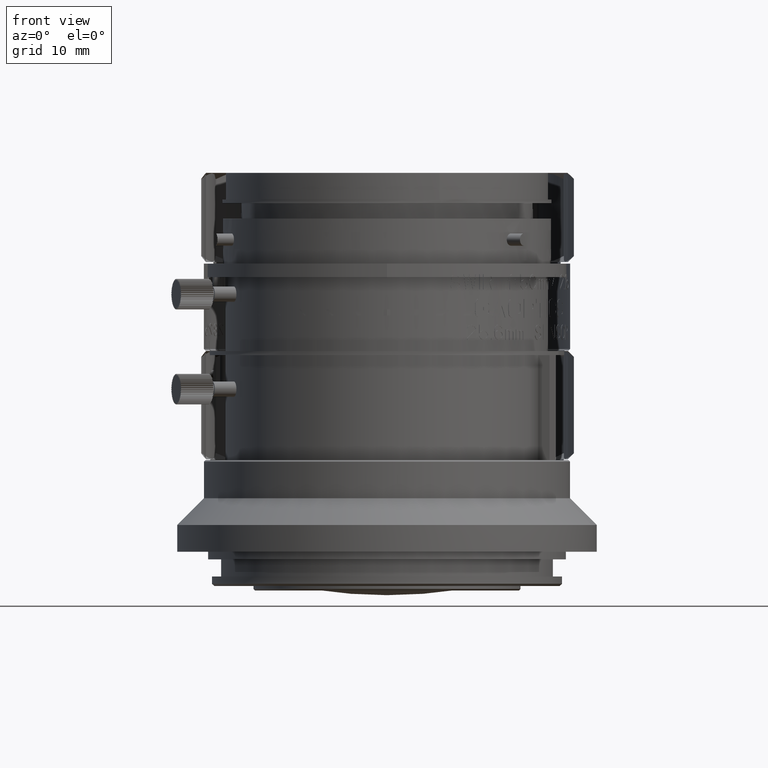
[diagram: clean part render]
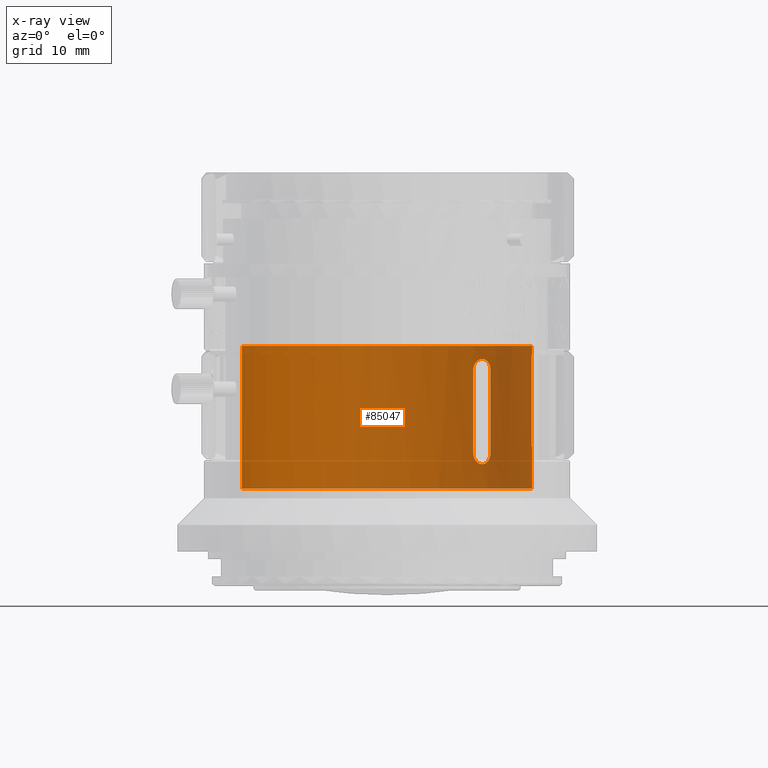
[diagram: x-ray — body ghosted, one internal face saturated and labeled with its STEP entity id]
A machine part, front view, then the same camera in x-ray: the body is ghosted and one INTERNAL B-rep face — a face not visible from any outside direction — is saturated and labeled: STEP entity #85047.
In plain terms, the highlighted cylindrical surface (partial cylindrical patch) has radius 19 mm, axis along (0, 0, -1).
Its self-contained STEP definition (entity closure, byte-faithful):
#395 = DIRECTION ( 'NONE',  ( 0.000000000000000000, 3.878000121706729887E-17, -1.000000000000000000 ) ) ;
#548 = CARTESIAN_POINT ( 'NONE',  ( 42.95321961788130238, 152.1289134582915210, -12.00000000000000000 ) ) ;
#924 = CARTESIAN_POINT ( 'NONE',  ( 35.29415085945115038, 166.0752613124145114, -24.80000044836035045 ) ) ;
#1603 = CARTESIAN_POINT ( 'NONE',  ( 37.02778168141250603, 164.6279587006355598, -12.69037005828635145 ) ) ;
#2789 = ORIENTED_EDGE ( 'NONE', *, *, #49259, .T. ) ;
#3276 = CARTESIAN_POINT ( 'NONE',  ( 14.47813718662098204, 167.2852477254471353, -10.79999999999999893 ) ) ;
#3670 = CARTESIAN_POINT ( 'NONE',  ( 37.42401270552105785, 164.2426996720872694, -13.24221919070071429 ) ) ;
#5167 = B_SPLINE_CURVE_WITH_KNOTS ( 'NONE', 3,
 ( #103851, #15483, #8034, #38376 ),
 .UNSPECIFIED., .F., .F.,
 ( 4, 4 ),
 ( 0.000000000000000000, 1.000000000000000000 ),
 .UNSPECIFIED. ) ;
#5172 = CARTESIAN_POINT ( 'NONE',  ( 41.07782624371362346, 159.2163202649900029, -29.49999999999940314 ) ) ;
#5372 = CARTESIAN_POINT ( 'NONE',  ( 6.922173747267330590, 159.2163202649918503, -10.79999999999999893 ) ) ;
#5419 = ORIENTED_EDGE ( 'NONE', *, *, #77456, .T. ) ;
#6236 = CARTESIAN_POINT ( 'NONE',  ( 7.511199614043024830, 160.3183101528693726, -29.49999999999940670 ) ) ;
#6762 = CARTESIAN_POINT ( 'NONE',  ( 8.892955109440778827, 162.3862533898762877, -29.49999999999941025 ) ) ;
#7394 = CARTESIAN_POINT ( 'NONE',  ( 42.95321961788130238, 152.1289134582915210, -12.00000000000000000 ) ) ;
#7479 = CYLINDRICAL_SURFACE ( 'NONE', #46284, 19.00000000000000000 ) ;
#8034 = CARTESIAN_POINT ( 'NONE',  ( 35.29415085874912705, 166.0752613123007961, -21.20000029852190337 ) ) ;
#8189 = VERTEX_POINT ( 'NONE', #924 ) ;
#11424 = EDGE_CURVE ( 'NONE', #69833, #69420, #36085, .T. ) ;
#11598 = CARTESIAN_POINT ( 'NONE',  ( 38.31434941954619688, 163.3521556050324364, -29.49999999999940314 ) ) ;
#11799 = CARTESIAN_POINT ( 'NONE',  ( 15.58012707449811529, 167.8742735922226643, -10.79999999999999893 ) ) ;
#12327 = CARTESIAN_POINT ( 'NONE',  ( 42.99999999549000052, 150.7964473440000006, -10.80000000000000071 ) ) ;
#12443 = CARTESIAN_POINT ( 'NONE',  ( 37.55822943194178265, 164.1071353259812611, -24.99910155720256810 ) ) ;
#12937 = CARTESIAN_POINT ( 'NONE',  ( 42.99999999549000052, 150.7964473440000006, -20.14999999999970015 ) ) ;
#13175 = CARTESIAN_POINT ( 'NONE',  ( 32.41987291648335656, 167.8742735922219538, -29.49999999999940314 ) ) ;
#14148 = VECTOR ( 'NONE', #86928, 1000.000000000000000 ) ;
#15483 = CARTESIAN_POINT ( 'NONE',  ( 35.29415085871695368, 166.0752613123245567, -17.60000014926090017 ) ) ;
#15805 = CARTESIAN_POINT ( 'NONE',  ( 11.44429173445661441, 165.1107967680553372, -29.49999999999941025 ) ) ;
#15985 = ORIENTED_EDGE ( 'NONE', *, *, #55064, .T. ) ;
#16194 = ORIENTED_EDGE ( 'NONE', *, *, #44936, .T. ) ;
#18625 = CARTESIAN_POINT ( 'NONE',  ( 42.95321961787214349, 152.1289134582965517, -20.00000000000000000 ) ) ;
#19270 = CARTESIAN_POINT ( 'NONE',  ( 5.122475665199156758, 153.2835107789395579, -10.79999999999999893 ) ) ;
#19291 = B_SPLINE_CURVE_WITH_KNOTS ( 'NONE', 3,
 ( #45114, #77616, #94651, #60026, #102086, #5172, #84556, #29125, #11598, #61602, #94115, #44054, #13175, #45627, #101046, #77089, #37639, #102613, #21185, #28083, #70120, #60555, #93072, #20127, #15805, #55735, #6762, #6236, #95167, #78658, #79717, #30683, #96745, #38167 ),
 .UNSPECIFIED., .F., .F.,
 ( 4, 2, 2, 2, 2, 2, 2, 2, 2, 2, 2, 2, 2, 2, 2, 2, 4 ),
 ( 0.000000000000000000, 0.06250000000000000000, 0.1250000000000000000, 0.1875000000000000000, 0.2500000000000000000, 0.3125000000000000000, 0.3750000000000000000, 0.4375000000000000000, 0.5000000000000000000, 0.5625000000000000000, 0.6250000000000000000, 0.6875000000000000000, 0.7500000000000000000, 0.8125000000000000000, 0.8750000000000000000, 0.9375000000000000000, 1.000000000000000000 ),
 .UNSPECIFIED. ) ;
#20127 = CARTESIAN_POINT ( 'NONE',  ( 12.41019394961472777, 165.9034922300500057, -29.49999999999939959 ) ) ;
#20321 = CARTESIAN_POINT ( 'NONE',  ( 38.31434941954494633, 163.3521556050338290, -10.79999999999999893 ) ) ;
#20449 = CARTESIAN_POINT ( 'NONE',  ( 35.53393053574318827, 165.8957279201297581, -25.72005964078381979 ) ) ;
#20862 = CARTESIAN_POINT ( 'NONE',  ( 32.41987291648192837, 167.8742735922226643, -10.79999999999999893 ) ) ;
#21185 = CARTESIAN_POINT ( 'NONE',  ( 21.51293656055162273, 169.6739716742910105, -29.49999999999941025 ) ) ;
#21275 = CARTESIAN_POINT ( 'NONE',  ( 36.16841545107473621, 165.3897144655242357, -12.53812143109752597 ) ) ;
#21392 = CARTESIAN_POINT ( 'NONE',  ( 11.44429173445611703, 165.1107967680548825, -10.79999999999999893 ) ) ;
#21963 = CARTESIAN_POINT ( 'NONE',  ( 35.29415085908024707, 166.0752613120529873, -13.99999999999320011 ) ) ;
#22215 = CARTESIAN_POINT ( 'NONE',  ( 42.95321961788130238, 152.1289134582915210, -12.00000000000000000 ) ) ;
#22925 = CARTESIAN_POINT ( 'NONE',  ( 23.99999999549000052, 150.7964473440000006, -20.14999999999970015 ) ) ;
#24656 = VERTEX_POINT ( 'NONE', #21963 ) ;
#25927 = ORIENTED_EDGE ( 'NONE', *, *, #65514, .T. ) ;
#27242 = CARTESIAN_POINT ( 'NONE',  ( 4.999999995490001403, 152.0399944360459585, -10.80000000000000071 ) ) ;
#28043 = CARTESIAN_POINT ( 'NONE',  ( 42.99999999549000052, 150.7964473440000006, -20.14999999999970015 ) ) ;
#28083 = CARTESIAN_POINT ( 'NONE',  ( 19.07363119381766126, 169.1887636690321415, -29.49999999999940314 ) ) ;
#28289 = CARTESIAN_POINT ( 'NONE',  ( 36.55570825652392841, 165.1107967680549109, -10.80000000000000249 ) ) ;
#28803 = CARTESIAN_POINT ( 'NONE',  ( 12.41019394961415401, 165.9034922300495225, -10.80000000000000071 ) ) ;
#29125 = CARTESIAN_POINT ( 'NONE',  ( 39.10704488154074454, 162.3862533898742413, -29.49999999999940314 ) ) ;
#29448 = CARTESIAN_POINT ( 'NONE',  ( 36.31501441265364605, 165.2664155118920633, -26.29999354851271320 ) ) ;
#29956 = VERTEX_POINT ( 'NONE', #39742 ) ;
#30683 = CARTESIAN_POINT ( 'NONE',  ( 5.122475665199165640, 153.2835107789396147, -29.49999999999941380 ) ) ;
#30735 = CARTESIAN_POINT ( 'NONE',  ( 4.999999995490000515, 150.7964473440000006, -20.14999999999970015 ) ) ;
#31240 = ORIENTED_EDGE ( 'NONE', *, *, #11424, .T. ) ;
#31407 = CARTESIAN_POINT ( 'NONE',  ( 37.55827959877614575, 164.1070842257992410, -21.19999999995989981 ) ) ;
#31568 = B_SPLINE_CURVE_WITH_KNOTS ( 'NONE', 3,
 ( #61393, #92875, #60874, #62447, #20449, #94968, #52879, #36394, #29448, #43860, #76348, #53954, #44903, #93908, #36912, #78447, #12443, #84352 ),
 .UNSPECIFIED., .F., .F.,
 ( 4, 2, 2, 2, 2, 2, 2, 2, 4 ),
 ( 0.000000000000000000, 0.1250000000000000000, 0.2500000000000000000, 0.3750000000000000000, 0.5000000000000000000, 0.6250000000000000000, 0.7500000000000000000, 0.8750000000000000000, 1.000000000000000000 ),
 .UNSPECIFIED. ) ;
#34071 = CARTESIAN_POINT ( 'NONE',  ( 36.75768620885329341, 164.8774716159113609, -12.53808179341858775 ) ) ;
#35611 = B_SPLINE_CURVE_WITH_KNOTS ( 'NONE', 3,
 ( #72511, #77491, #104477, #55484 ),
 .UNSPECIFIED., .F., .F.,
 ( 4, 4 ),
 ( 0.000000000000000000, 1.000000000000000000 ),
 .UNSPECIFIED. ) ;
#35734 = CARTESIAN_POINT ( 'NONE',  ( 7.511199614042821437, 160.3183101528690315, -10.79999999999999893 ) ) ;
#36085 = B_SPLINE_CURVE_WITH_KNOTS ( 'NONE', 3,
 ( #62659, #103146, #95172, #22215 ),
 .UNSPECIFIED., .F., .F.,
 ( 4, 4 ),
 ( 0.000000000000000000, 1.000000000000000000 ),
 .UNSPECIFIED. ) ;
#36268 = CARTESIAN_POINT ( 'NONE',  ( 22.75645290344406391, 169.7964473440000006, -10.80000000000000071 ) ) ;
#36394 = CARTESIAN_POINT ( 'NONE',  ( 36.16846216925600288, 165.3896762667183395, -26.26191827598798767 ) ) ;
#36763 = ORIENTED_EDGE ( 'NONE', *, *, #58964, .T. ) ;
#36912 = CARTESIAN_POINT ( 'NONE',  ( 37.42400026280746062, 164.2427121944982389, -25.55778771071468469 ) ) ;
#37093 = EDGE_CURVE ( 'NONE', #69420, #94394, #53904, .T. ) ;
#37639 = CARTESIAN_POINT ( 'NONE',  ( 25.24354708753726939, 169.7964473439999153, -29.49999999999941025 ) ) ;
#38167 = CARTESIAN_POINT ( 'NONE',  ( 4.999999995490000515, 150.7964473440015070, -29.50000000000000000 ) ) ;
#38376 = CARTESIAN_POINT ( 'NONE',  ( 35.29415085945115038, 166.0752613124145114, -24.80000044836035045 ) ) ;
#38525 = EDGE_CURVE ( 'NONE', #46899, #69833, #51999, .T. ) ;
#38790 = CARTESIAN_POINT ( 'NONE',  ( 42.99999999549000052, 150.7964473440000006, -10.80000000000000071 ) ) ;
#39742 = CARTESIAN_POINT ( 'NONE',  ( 42.99999999549000052, 150.7964473439984943, -29.49999999999959854 ) ) ;
#39961 = DIRECTION ( 'NONE',  ( 0.000000000000000000, 3.878000121706729887E-17, -1.000000000000000000 ) ) ;
#41546 = B_SPLINE_CURVE_WITH_KNOTS ( 'NONE', 3,
 ( #60111, #44144, #76634, #3670, #98537, #82571, #1603, #34071, #70208, #86738, #21275, #101658, #79274, #77695, #93676, #103227, #78209, #69161 ),
 .UNSPECIFIED., .F., .F.,
 ( 4, 2, 2, 2, 2, 2, 2, 2, 4 ),
 ( 0.000000000000000000, 0.1250000000000000000, 0.2500000000000000000, 0.3750000000000000000, 0.5000000000000000000, 0.6250000000000000000, 0.7500000000000000000, 0.8750000000000000000, 1.000000000000000000 ),
 .UNSPECIFIED. ) ;
#41729 = CARTESIAN_POINT ( 'NONE',  ( 42.95321961788135212, 152.1289134582915210, -24.00000000000000000 ) ) ;
#42201 = CARTESIAN_POINT ( 'NONE',  ( 4.999999995490000515, 150.7964473440015070, -10.80000000000000071 ) ) ;
#43860 = CARTESIAN_POINT ( 'NONE',  ( 36.61522901956109166, 165.0054429293674616, -26.30000644928804121 ) ) ;
#44054 = CARTESIAN_POINT ( 'NONE',  ( 33.52186280436047383, 167.2852477254463679, -29.49999999999940314 ) ) ;
#44144 = CARTESIAN_POINT ( 'NONE',  ( 37.55822944088757254, 164.1071353168689768, -13.80093407190116395 ) ) ;
#44248 = CARTESIAN_POINT ( 'NONE',  ( 26.48706343042954359, 169.6739716742908399, -10.80000000000000071 ) ) ;
#44895 = VERTEX_POINT ( 'NONE', #95976 ) ;
#44903 = CARTESIAN_POINT ( 'NONE',  ( 37.14517944504810743, 164.5159263131863838, -26.00130655457481055 ) ) ;
#44936 = EDGE_CURVE ( 'NONE', #94394, #95691, #35611, .T. ) ;
#45114 = CARTESIAN_POINT ( 'NONE',  ( 42.99999999549000052, 150.7964473439984943, -29.49999999999959854 ) ) ;
#45315 = CARTESIAN_POINT ( 'NONE',  ( 8.892955109440469741, 162.3862533898758045, -10.79999999999999893 ) ) ;
#45627 = CARTESIAN_POINT ( 'NONE',  ( 30.12209750437294886, 168.8260433312057671, -29.49999999999940314 ) ) ;
#46186 = ORIENTED_EDGE ( 'NONE', *, *, #85406, .F. ) ;
#46284 = AXIS2_PLACEMENT_3D ( 'NONE', #22925, #39961, #96928 ) ;
#46899 = VERTEX_POINT ( 'NONE', #38790 ) ;
#49259 = EDGE_CURVE ( 'NONE', #29956, #44895, #19291, .T. ) ;
#51999 = LINE ( 'NONE', #28043, #57951 ) ;
#52879 = CARTESIAN_POINT ( 'NONE',  ( 35.88378747358409271, 165.6224177082200697, -26.10963009969017534 ) ) ;
#53294 = CARTESIAN_POINT ( 'NONE',  ( 41.07782624371269975, 159.2163202649919356, -10.80000000000000249 ) ) ;
#53833 = CARTESIAN_POINT ( 'NONE',  ( 42.87752432578086115, 153.2835107789394442, -10.79999999999999893 ) ) ;
#53904 = B_SPLINE_CURVE_WITH_KNOTS ( 'NONE', 3,
 ( #548, #91591, #18625, #74004 ),
 .UNSPECIFIED., .F., .F.,
 ( 4, 4 ),
 ( 0.000000000000000000, 1.000000000000000000 ),
 .UNSPECIFIED. ) ;
#53954 = CARTESIAN_POINT ( 'NONE',  ( 37.02773765795561900, 164.6279993671268755, -26.10966949483950472 ) ) ;
#54435 = LINE ( 'NONE', #12937, #14148 ) ;
#55064 = EDGE_CURVE ( 'NONE', #94660, #24656, #41546, .T. ) ;
#55484 = CARTESIAN_POINT ( 'NONE',  ( 42.99999999549000052, 150.7964473440000006, -24.00000000000000000 ) ) ;
#55735 = CARTESIAN_POINT ( 'NONE',  ( 9.685650571435466816, 163.3521556050343406, -29.49999999999940670 ) ) ;
#56665 = CARTESIAN_POINT ( 'NONE',  ( 42.99999999549000052, 150.7964473440000006, -24.00000000000000000 ) ) ;
#57951 = VECTOR ( 'NONE', #77047, 1000.000000000000000 ) ;
#58964 = EDGE_CURVE ( 'NONE', #8189, #73405, #31568, .T. ) ;
#59272 = ORIENTED_EDGE ( 'NONE', *, *, #38525, .T. ) ;
#60026 = CARTESIAN_POINT ( 'NONE',  ( 42.39231632052250376, 155.7228161456710893, -29.49999999999939959 ) ) ;
#60111 = CARTESIAN_POINT ( 'NONE',  ( 37.55827959875870192, 164.1070842258079949, -13.99999999999495870 ) ) ;
#60232 = EDGE_CURVE ( 'NONE', #61184, #46899, #76693, .T. ) ;
#60555 = CARTESIAN_POINT ( 'NONE',  ( 15.58012707449889689, 167.8742735922230906, -29.49999999999940314 ) ) ;
#60758 = CARTESIAN_POINT ( 'NONE',  ( 39.10704488153956504, 162.3862533898758613, -10.80000000000000249 ) ) ;
#60874 = CARTESIAN_POINT ( 'NONE',  ( 35.32499825337100674, 166.0526012949818551, -25.19048684072405209 ) ) ;
#61184 = VERTEX_POINT ( 'NONE', #42201 ) ;
#61272 = CARTESIAN_POINT ( 'NONE',  ( 25.24354708753597976, 169.7964473439999438, -10.79999999999999716 ) ) ;
#61393 = CARTESIAN_POINT ( 'NONE',  ( 35.29415085945115038, 166.0752613124145114, -24.80000044836035045 ) ) ;
#61602 = CARTESIAN_POINT ( 'NONE',  ( 36.55570825652527134, 165.1107967680537172, -29.49999999999940314 ) ) ;
#61677 = ORIENTED_EDGE ( 'NONE', *, *, #60232, .T. ) ;
#61805 = CARTESIAN_POINT ( 'NONE',  ( 40.48880037693719203, 160.3183101528690031, -10.79999999999999893 ) ) ;
#62447 = CARTESIAN_POINT ( 'NONE',  ( 35.44713301203733380, 165.9611749913578365, -25.55778115882038648 ) ) ;
#62659 = CARTESIAN_POINT ( 'NONE',  ( 42.99999999549000052, 150.7964473439984943, -12.00000000000000000 ) ) ;
#63311 = VECTOR ( 'NONE', #395, 1000.000000000000000 ) ;
#63886 = CARTESIAN_POINT ( 'NONE',  ( 37.55827959877618127, 164.1070842257992126, -17.59999999997949871 ) ) ;
#65514 = EDGE_CURVE ( 'NONE', #73405, #94660, #71425, .T. ) ;
#66010 = FACE_OUTER_BOUND ( 'NONE', #84577, .T. ) ;
#66319 = CARTESIAN_POINT ( 'NONE',  ( 42.99999999549000052, 150.7964473439984943, -12.00000000000000000 ) ) ;
#69161 = CARTESIAN_POINT ( 'NONE',  ( 35.29415085908024707, 166.0752613120529873, -13.99999999999320011 ) ) ;
#69420 = VERTEX_POINT ( 'NONE', #7394 ) ;
#69795 = CARTESIAN_POINT ( 'NONE',  ( 5.607683670458089686, 155.7228161456733346, -10.79999999999999893 ) ) ;
#69833 = VERTEX_POINT ( 'NONE', #66319 ) ;
#70120 = CARTESIAN_POINT ( 'NONE',  ( 17.87790248660942538, 168.8260433312065345, -29.49999999999941025 ) ) ;
#70208 = CARTESIAN_POINT ( 'NONE',  ( 36.61522885823603701, 165.0054430727104204, -12.50000648298502348 ) ) ;
#71425 = B_SPLINE_CURVE_WITH_KNOTS ( 'NONE', 3,
 ( #80963, #31407, #63886, #96409 ),
 .UNSPECIFIED., .F., .F.,
 ( 4, 4 ),
 ( 0.000000000000000000, 1.000000000000000000 ),
 .UNSPECIFIED. ) ;
#72511 = CARTESIAN_POINT ( 'NONE',  ( 42.95321961788135212, 152.1289134582915210, -24.00000000000000000 ) ) ;
#73080 = CARTESIAN_POINT ( 'NONE',  ( 37.55827959877419886, 164.1070842257930167, -24.79999999998700133 ) ) ;
#73405 = VERTEX_POINT ( 'NONE', #73080 ) ;
#74004 = CARTESIAN_POINT ( 'NONE',  ( 42.95321961788135212, 152.1289134582915210, -24.00000000000000000 ) ) ;
#76348 = CARTESIAN_POINT ( 'NONE',  ( 36.75773047429233031, 164.8774307258781278, -26.26187851706459853 ) ) ;
#76634 = CARTESIAN_POINT ( 'NONE',  ( 37.53154705847193640, 164.1344776705502966, -13.60951357815554630 ) ) ;
#76693 = B_SPLINE_CURVE_WITH_KNOTS ( 'NONE', 3,
 ( #100209, #27242, #19270, #69795, #101243, #5372, #35734, #45315, #85281, #21392, #28803, #3276, #11799, #102817, #84758, #102286, #36268, #61272, #44248, #101774, #93788, #20862, #85812, #94851, #28289, #20321, #60758, #61805, #53294, #93277, #86344, #53833, #77292, #12327 ),
 .UNSPECIFIED., .F., .F.,
 ( 4, 2, 2, 2, 2, 2, 2, 2, 2, 2, 2, 2, 2, 2, 2, 2, 4 ),
 ( 0.000000000000000000, 0.06249999999999988898, 0.1249999999999997780, 0.1874999999999996669, 0.2499999999999995559, 0.3124999999999994449, 0.3749999999999993339, 0.4374999999999993339, 0.4999999999999993339, 0.5624999999999993339, 0.6249999999999993339, 0.6874999999999994449, 0.7499999999999995559, 0.8124999999999996669, 0.8749999999999997780, 0.9374999999999998890, 1.000000000000000000 ),
 .UNSPECIFIED. ) ;
#77047 = DIRECTION ( 'NONE',  ( 0.000000000000000000, 3.878000121706729887E-17, -1.000000000000000000 ) ) ;
#77089 = CARTESIAN_POINT ( 'NONE',  ( 26.48706343043086520, 169.6739716742906410, -29.49999999999940670 ) ) ;
#77292 = CARTESIAN_POINT ( 'NONE',  ( 42.99999999549002183, 152.0399944360459585, -10.80000000000000249 ) ) ;
#77456 = EDGE_CURVE ( 'NONE', #95691, #29956, #54435, .T. ) ;
#77491 = CARTESIAN_POINT ( 'NONE',  ( 42.98439373229508220, 151.6854876699391355, -24.00000000000014566 ) ) ;
#77616 = CARTESIAN_POINT ( 'NONE',  ( 42.99999999549015683, 152.0399944360435711, -29.49999999999941025 ) ) ;
#77695 = CARTESIAN_POINT ( 'NONE',  ( 35.53387893219194638, 165.8957679454910021, -13.07998734331634694 ) ) ;
#78209 = CARTESIAN_POINT ( 'NONE',  ( 35.29420844463648166, 166.0752187446184678, -13.80089842108012732 ) ) ;
#78447 = CARTESIAN_POINT ( 'NONE',  ( 37.53155953335146933, 164.1344651157677959, -25.19047941078049746 ) ) ;
#78658 = CARTESIAN_POINT ( 'NONE',  ( 5.970404008283859199, 156.9185448528817801, -29.49999999999940670 ) ) ;
#79274 = CARTESIAN_POINT ( 'NONE',  ( 35.75650663277676955, 165.7230811788785161, -12.79869336713590755 ) ) ;
#79717 = CARTESIAN_POINT ( 'NONE',  ( 5.607683670458137648, 155.7228161456735620, -29.49999999999941025 ) ) ;
#80963 = CARTESIAN_POINT ( 'NONE',  ( 37.55827959877419886, 164.1070842257930167, -24.79999999998700133 ) ) ;
#82571 = CARTESIAN_POINT ( 'NONE',  ( 37.14522604416276863, 164.5158809964592592, -12.79874007964154181 ) ) ;
#84352 = CARTESIAN_POINT ( 'NONE',  ( 37.55827959877419886, 164.1070842257930167, -24.79999999998700133 ) ) ;
#84556 = CARTESIAN_POINT ( 'NONE',  ( 40.48880037693823652, 160.3183101528672410, -29.49999999999940314 ) ) ;
#84577 = EDGE_LOOP ( 'NONE', ( #61677, #59272, #31240, #103258, #16194, #5419, #2789, #46186 ) ) ;
#84758 = CARTESIAN_POINT ( 'NONE',  ( 19.07363119381666294, 169.1887636690319425, -10.80000000000000071 ) ) ;
#85047 = ADVANCED_FACE ( 'NONE', ( #97988, #66010 ), #7479, .T. ) ;
#85281 = CARTESIAN_POINT ( 'NONE',  ( 9.685650571435092004, 163.3521556050338859, -10.79999999999999893 ) ) ;
#85406 = EDGE_CURVE ( 'NONE', #61184, #44895, #87764, .T. ) ;
#85812 = CARTESIAN_POINT ( 'NONE',  ( 33.52186280435905275, 167.2852477254471637, -10.80000000000000249 ) ) ;
#86344 = CARTESIAN_POINT ( 'NONE',  ( 42.39231632052194243, 155.7228161456733346, -10.80000000000000249 ) ) ;
#86738 = CARTESIAN_POINT ( 'NONE',  ( 36.31501423605558898, 165.2664156623011422, -12.49999351921318080 ) ) ;
#86891 = CARTESIAN_POINT ( 'NONE',  ( 37.55827959875870192, 164.1070842258079949, -13.99999999999495870 ) ) ;
#86928 = DIRECTION ( 'NONE',  ( 0.000000000000000000, 3.878000121706729887E-17, -1.000000000000000000 ) ) ;
#87764 = LINE ( 'NONE', #30735, #63311 ) ;
#91591 = CARTESIAN_POINT ( 'NONE',  ( 42.95321961787214349, 152.1289134582965517, -16.00000000000000000 ) ) ;
#92875 = CARTESIAN_POINT ( 'NONE',  ( 35.29420848522879339, 166.0752187146124470, -24.99906638106685719 ) ) ;
#93072 = CARTESIAN_POINT ( 'NONE',  ( 14.47813718662169435, 167.2852477254475900, -29.49999999999941025 ) ) ;
#93277 = CARTESIAN_POINT ( 'NONE',  ( 42.02959598269622887, 156.9185448528815243, -10.79999999999999893 ) ) ;
#93676 = CARTESIAN_POINT ( 'NONE',  ( 35.44714700840539479, 165.9611645149102799, -13.24221221959380479 ) ) ;
#93788 = CARTESIAN_POINT ( 'NONE',  ( 30.12209750437153133, 168.8260433312062503, -10.80000000000000071 ) ) ;
#93908 = CARTESIAN_POINT ( 'NONE',  ( 37.34716939161169336, 164.3194985920824820, -25.72001257684332742 ) ) ;
#94115 = CARTESIAN_POINT ( 'NONE',  ( 35.58980604136726811, 165.9034922300484709, -29.49999999999940314 ) ) ;
#94394 = VERTEX_POINT ( 'NONE', #41729 ) ;
#94651 = CARTESIAN_POINT ( 'NONE',  ( 42.87752432578115958, 153.2835107789371420, -29.49999999999940670 ) ) ;
#94660 = VERTEX_POINT ( 'NONE', #86891 ) ;
#94851 = CARTESIAN_POINT ( 'NONE',  ( 35.58980604136586834, 165.9034922300495225, -10.79999999999999893 ) ) ;
#94968 = CARTESIAN_POINT ( 'NONE',  ( 35.75645540482246787, 165.7231209128985370, -26.00126012328084713 ) ) ;
#95167 = CARTESIAN_POINT ( 'NONE',  ( 6.922173747267486021, 159.2163202649922198, -29.49999999999941025 ) ) ;
#95172 = CARTESIAN_POINT ( 'NONE',  ( 42.98439373229513194, 151.6854876699386523, -12.00000000000000888 ) ) ;
#95691 = VERTEX_POINT ( 'NONE', #56665 ) ;
#95976 = CARTESIAN_POINT ( 'NONE',  ( 4.999999995490000515, 150.7964473440015070, -29.50000000000000000 ) ) ;
#96244 = EDGE_LOOP ( 'NONE', ( #36763, #25927, #15985, #96646 ) ) ;
#96409 = CARTESIAN_POINT ( 'NONE',  ( 37.55827959875870192, 164.1070842258079949, -13.99999999999495870 ) ) ;
#96646 = ORIENTED_EDGE ( 'NONE', *, *, #105195, .T. ) ;
#96745 = CARTESIAN_POINT ( 'NONE',  ( 4.999999995490000515, 152.0399944360460722, -29.49999999999941380 ) ) ;
#96928 = DIRECTION ( 'NONE',  ( -1.000000000000000000, 0.000000000000000000, 0.000000000000000000 ) ) ;
#97988 = FACE_BOUND ( 'NONE', #96244, .T. ) ;
#98537 = CARTESIAN_POINT ( 'NONE',  ( 37.34712267892222570, 164.3195440192569095, -13.07994063084761827 ) ) ;
#100209 = CARTESIAN_POINT ( 'NONE',  ( 4.999999995490000515, 150.7964473440015070, -10.80000000000000071 ) ) ;
#101046 = CARTESIAN_POINT ( 'NONE',  ( 28.92636879716477338, 169.1887636690315446, -29.49999999999941025 ) ) ;
#101243 = CARTESIAN_POINT ( 'NONE',  ( 5.970404008283779262, 156.9185448528815243, -10.79999999999999893 ) ) ;
#101658 = CARTESIAN_POINT ( 'NONE',  ( 35.88383376664720004, 165.6223798569779717, -12.69033042058607386 ) ) ;
#101774 = CARTESIAN_POINT ( 'NONE',  ( 28.92636879716337361, 169.1887636690318857, -10.79999999999999716 ) ) ;
#102086 = CARTESIAN_POINT ( 'NONE',  ( 42.02959598269694652, 156.9185448528793358, -29.49999999999940314 ) ) ;
#102286 = CARTESIAN_POINT ( 'NONE',  ( 21.51293656055050008, 169.6739716742908115, -10.79999999999999716 ) ) ;
#102613 = CARTESIAN_POINT ( 'NONE',  ( 22.75645290344524341, 169.7964473440000290, -29.49999999999940314 ) ) ;
#102817 = CARTESIAN_POINT ( 'NONE',  ( 17.87790248660850523, 168.8260433312062503, -10.79999999999999893 ) ) ;
#103146 = CARTESIAN_POINT ( 'NONE',  ( 42.99999999549005025, 151.2409675968445413, -12.00000000000000888 ) ) ;
#103227 = CARTESIAN_POINT ( 'NONE',  ( 35.32498400140821815, 166.0526119627597552, -13.60952054922023358 ) ) ;
#103258 = ORIENTED_EDGE ( 'NONE', *, *, #37093, .T. ) ;
#103851 = CARTESIAN_POINT ( 'NONE',  ( 35.29415085908024707, 166.0752613120529873, -13.99999999999320011 ) ) ;
#104477 = CARTESIAN_POINT ( 'NONE',  ( 42.99999999549000052, 151.2409675968458771, -24.00000000000024869 ) ) ;
#105195 = EDGE_CURVE ( 'NONE', #24656, #8189, #5167, .T. ) ;